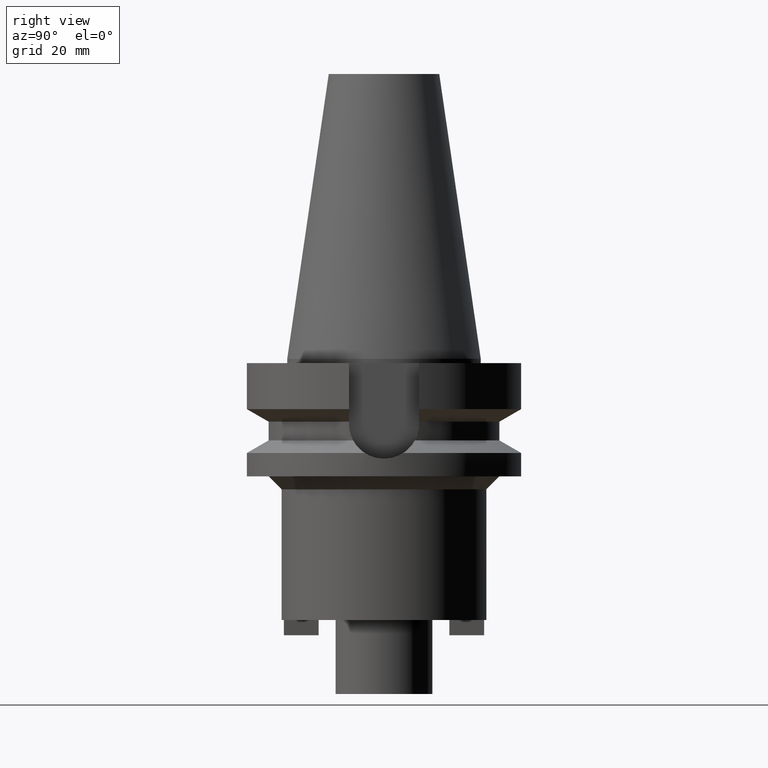
[diagram: clean part render]
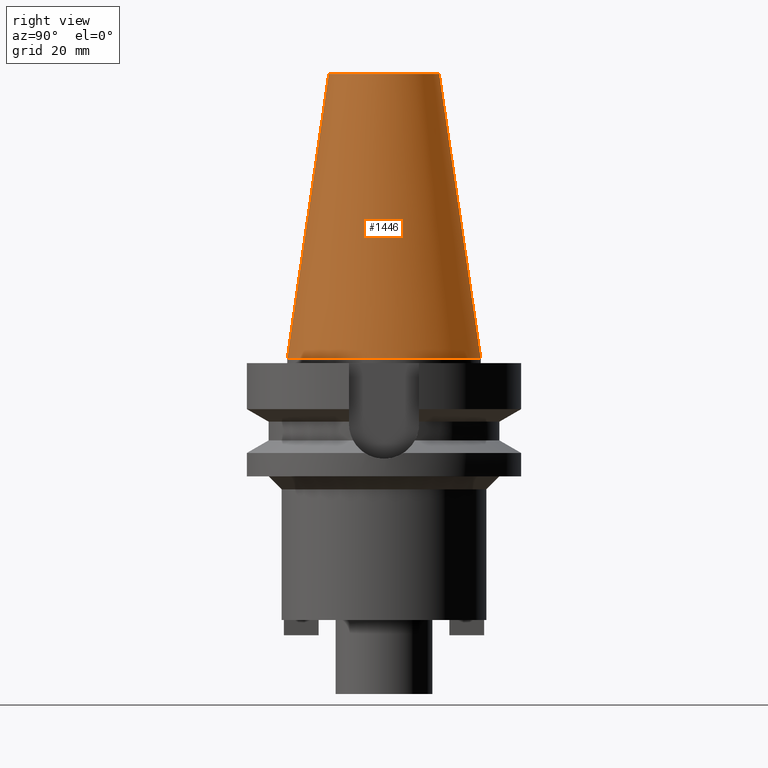
[diagram: same view with one face highlighted and labeled with its STEP entity id]
A machine part, right view. The second image highlights one B-rep face of the part: STEP entity #1446.
In plain terms, the highlighted conical surface has half-angle 8.297 deg.
Its self-contained STEP definition (entity closure, byte-faithful):
#26=CARTESIAN_POINT('',(0.E0,1.625106302469E-14,6.54E1));
#27=DIRECTION('',(0.E0,0.E0,-1.E0));
#28=DIRECTION('',(0.E0,1.E0,0.E0));
#29=AXIS2_PLACEMENT_3D('',#26,#27,#28);
#50=DIRECTION('',(0.E0,-1.443043893540E-1,-9.895333461856E-1));
#51=VECTOR('',#50,6.609175956738E1);
#52=CARTESIAN_POINT('',(0.E0,-1.268766899430E1,6.54E1));
#53=LINE('',#52,#51);
#65=DIRECTION('',(0.E0,1.443043893540E-1,-9.895333461856E-1));
#66=VECTOR('',#65,6.609175956738E1);
#67=CARTESIAN_POINT('',(0.E0,1.268766899430E1,6.54E1));
#68=LINE('',#67,#66);
#72=CARTESIAN_POINT('',(0.E0,1.625106302469E-14,2.842170943040E-14));
#73=DIRECTION('',(0.E0,0.E0,-1.E0));
#74=DIRECTION('',(0.E0,1.E0,0.E0));
#75=AXIS2_PLACEMENT_3D('',#72,#73,#74);
#1208=CARTESIAN_POINT('',(0.E0,-1.268766899430E1,6.54E1));
#1209=CARTESIAN_POINT('',(0.E0,1.268766899430E1,6.54E1));
#1210=VERTEX_POINT('',#1208);
#1211=VERTEX_POINT('',#1209);
#1373=CARTESIAN_POINT('',(0.E0,2.2225E1,9.237055564881E-14));
#1374=VERTEX_POINT('',#1373);
#1375=CARTESIAN_POINT('',(0.E0,-2.2225E1,9.237055564881E-14));
#1376=VERTEX_POINT('',#1375);
#1434=CARTESIAN_POINT('',(0.E0,1.625106302469E-14,3.27E1));
#1435=DIRECTION('',(0.E0,0.E0,-1.E0));
#1436=DIRECTION('',(0.E0,-1.E0,0.E0));
#1437=AXIS2_PLACEMENT_3D('',#1434,#1435,#1436);
#1438=CONICAL_SURFACE('',#1437,1.745633449715E1,8.297E0);
#1439=ORIENTED_EDGE('',*,*,#1424,.T.);
#1441=ORIENTED_EDGE('',*,*,#1440,.T.);
#1442=ORIENTED_EDGE('',*,*,#1427,.F.);
#1443=ORIENTED_EDGE('',*,*,#1408,.F.);
#1444=EDGE_LOOP('',(#1439,#1441,#1442,#1443));
#1445=FACE_OUTER_BOUND('',#1444,.F.);
#30=CIRCLE('',#29,1.268766899430E1);
#76=CIRCLE('',#75,2.2225E1);
#1408=EDGE_CURVE('',#1211,#1210,#30,.T.);
#1424=EDGE_CURVE('',#1211,#1374,#68,.T.);
#1427=EDGE_CURVE('',#1210,#1376,#53,.T.);
#1440=EDGE_CURVE('',#1374,#1376,#76,.T.);
#1446=ADVANCED_FACE('',(#1445),#1438,.T.);